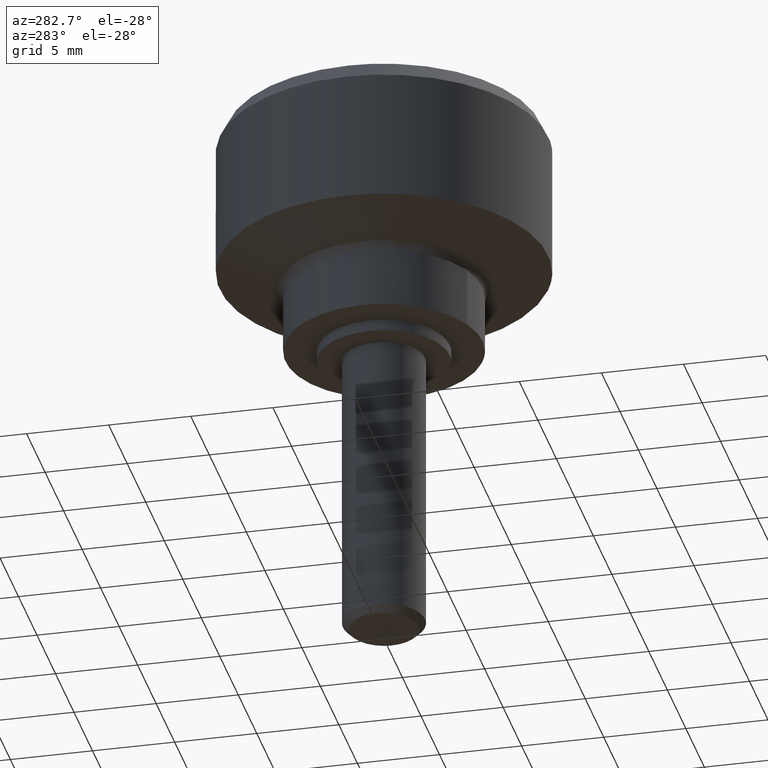
[diagram: clean part render]
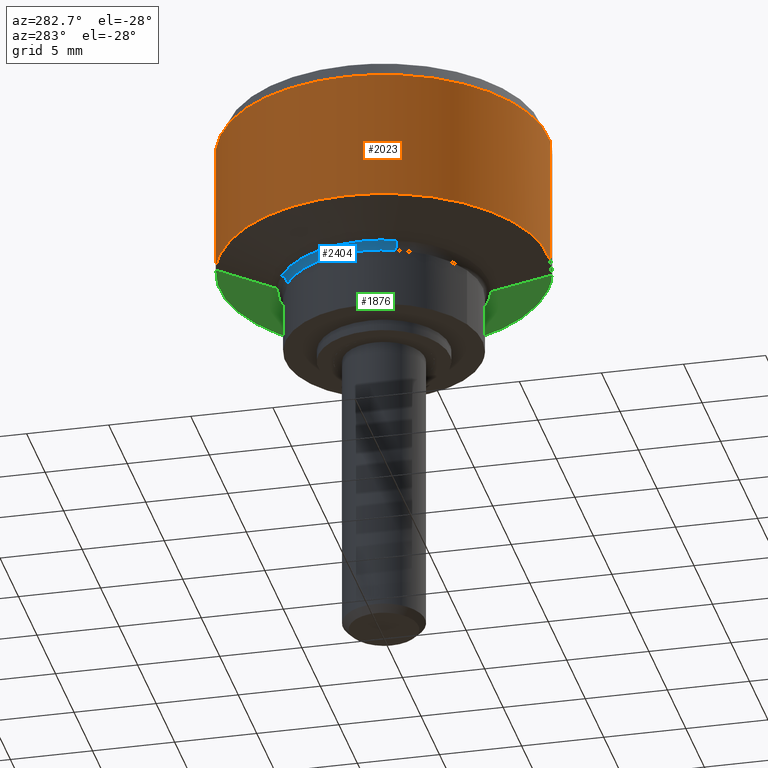
[diagram: same view with three faces highlighted in distinct colors, each labeled with its STEP entity id]
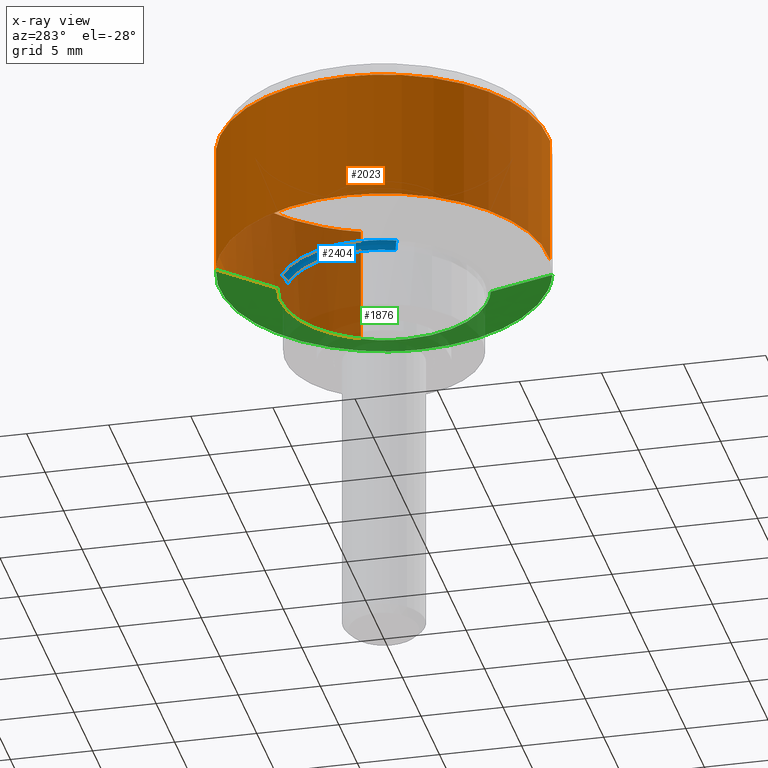
[diagram: x-ray of the same camera — body ghosted, the three highlighted faces saturated]
A machine part, auxiliary view with three faces highlighted in distinct colors.
The next image is the same camera in x-ray (body ghosted, the three faces saturated) — at least one of them is partly hidden behind the body in this view.
Their STEP definitions:

[orange] entity #2023 — the highlighted face is a freeform B-spline surface patch.
#1653=CARTESIAN_POINT('',(-10.0,0.0,6.0));
#1654=VERTEX_POINT('',#1653);
#1655=CARTESIAN_POINT('',(-2.503798872961155,9.681474495722098,5.999999304625973));
#1656=VERTEX_POINT('',#1655);
#1657=CARTESIAN_POINT('',(-10.0,0.0,6.0));
#1658=CARTESIAN_POINT('',(-9.999999732140749,7.742826764646780,5.999999652312988));
#1659=CARTESIAN_POINT('',(-2.503798872961156,9.681474495722098,5.999999304625973));
#1667=(BOUNDED_CURVE()B_SPLINE_CURVE(2,(#1657,#1658,#1659),.UNSPECIFIED.,.F.,.U.)B_SPLINE_CURVE_WITH_KNOTS((3,3),(0.0,0.207273780869320),.UNSPECIFIED.)CURVE()GEOMETRIC_REPRESENTATION_ITEM()RATIONAL_B_SPLINE_CURVE((1.0,0.757163660582203,0.916996170793144))REPRESENTATION_ITEM(''));
#1668=EDGE_CURVE('',#1654,#1656,#1667,.T.);
#1746=CARTESIAN_POINT('',(0.610475361595761,-9.981348597899157,6.0));
#1747=VERTEX_POINT('',#1746);
#1761=CARTESIAN_POINT('',(0.610475361595761,-9.981348597899157,6.0));
#1762=CARTESIAN_POINT('',(0.305522602043037,-10.000000000000002,6.000000000000001));
#1763=CARTESIAN_POINT('',(0.0,-10.0,6.0));
#1764=CARTESIAN_POINT('',(-10.000000000000002,-10.000000000000002,6.0));
#1765=CARTESIAN_POINT('',(-10.0,0.0,6.0));
#1773=(BOUNDED_CURVE()B_SPLINE_CURVE(2,(#1761,#1762,#1763,#1764,#1765),.UNSPECIFIED.,.F.,.U.)B_SPLINE_CURVE_WITH_KNOTS((3,2,3),(0.739333135694699,0.750000000000000,1.0),.UNSPECIFIED.)CURVE()GEOMETRIC_REPRESENTATION_ITEM()RATIONAL_B_SPLINE_CURVE((0.976072413415703,0.987502991115896,1.0,0.707106781186548,1.0))REPRESENTATION_ITEM(''));
#1774=EDGE_CURVE('',#1747,#1654,#1773,.T.);
#1797=CARTESIAN_POINT('',(9.361437293113475,3.516175736092539,6.0));
#1798=VERTEX_POINT('',#1797);
#1799=CARTESIAN_POINT('',(-2.503798872961156,9.681474495722098,5.999999304625973));
#1800=CARTESIAN_POINT('',(-1.272159850586715,9.999998075088126,5.999999353824332));
#1801=CARTESIAN_POINT('',(0.000000452588547,9.999998249968904,5.999999412530252));
#1802=CARTESIAN_POINT('',(6.926099330766170,9.999999202082847,5.999999732146425));
#1803=CARTESIAN_POINT('',(9.361437293113475,3.516175736092540,6.0));
#1811=(BOUNDED_CURVE()B_SPLINE_CURVE(2,(#1799,#1800,#1801,#1802,#1803),.UNSPECIFIED.,.F.,.U.)B_SPLINE_CURVE_WITH_KNOTS((3,2,3),(0.207273780869320,0.250000000000000,0.440284238520502),.UNSPECIFIED.)CURVE()GEOMETRIC_REPRESENTATION_ITEM()RATIONAL_B_SPLINE_CURVE((0.916996170793144,0.949943120604345,1.0,0.777068147561054,0.893499637388585))REPRESENTATION_ITEM(''));
#1812=EDGE_CURVE('',#1656,#1798,#1811,.T.);
#1899=CARTESIAN_POINT('',(9.361436534043978,3.516177757034214,13.999999999999989));
#1900=VERTEX_POINT('',#1899);
#1916=CARTESIAN_POINT('',(0.610485395359689,-9.981347984218999,13.999999999996110));
#1917=VERTEX_POINT('',#1916);
#1931=CARTESIAN_POINT('',(0.610485395359689,-9.981347984218999,13.999999999996110));
#1932=CARTESIAN_POINT('',(0.610475361595761,-9.981348597899157,6.0));
#1933=QUASI_UNIFORM_CURVE('',1,(#1931,#1932),.UNSPECIFIED.,.F.,.U.);
#1934=EDGE_CURVE('',#1917,#1747,#1933,.T.);
#1939=CARTESIAN_POINT('',(9.361436534043978,3.516177757034214,13.999999999999989));
#1940=CARTESIAN_POINT('',(9.361437293113475,3.516175736092539,6.0));
#1941=QUASI_UNIFORM_CURVE('',1,(#1939,#1940),.UNSPECIFIED.,.F.,.U.);
#1942=EDGE_CURVE('',#1900,#1798,#1941,.T.);
#1947=CARTESIAN_POINT('',(0.610485395348570,-9.981347984218667,14.199999999999999));
#1948=CARTESIAN_POINT('',(-9.370862588870097,-10.591833379567237,14.200000000000006));
#1949=CARTESIAN_POINT('',(-9.981347984218667,-0.610485395348570,14.199999999999999));
#1950=CARTESIAN_POINT('',(-10.591833379567237,9.370862588870097,14.200000000000006));
#1951=CARTESIAN_POINT('',(-0.610485395348570,9.981347984218667,14.199999999999999));
#1952=CARTESIAN_POINT('',(6.763695818030652,10.432372228693419,14.199999999999999));
#1953=CARTESIAN_POINT('',(9.361435787766570,3.516179743915722,14.200000000000010));
#1954=CARTESIAN_POINT('',(0.610485395348570,-9.981347984218667,5.795000000000000));
#1955=CARTESIAN_POINT('',(-9.370862588870097,-10.591833379567237,5.795000000000000));
#1956=CARTESIAN_POINT('',(-9.981347984218667,-0.610485395348570,5.795000000000000));
#1957=CARTESIAN_POINT('',(-10.591833379567237,9.370862588870097,5.795000000000000));
#1958=CARTESIAN_POINT('',(-0.610485395348570,9.981347984218667,5.795000000000000));
#1959=CARTESIAN_POINT('',(6.763695818030652,10.432372228693419,5.795000000000000));
#1960=CARTESIAN_POINT('',(9.361435787766570,3.516179743915722,5.795000000000001));
#1968=(BOUNDED_SURFACE()B_SPLINE_SURFACE(2,1,((#1947,#1954),(#1948,#1955),(#1949,#1956),(#1950,#1957),(#1951,#1958),(#1952,#1959),(#1953,#1960)),.UNSPECIFIED.,.F.,.F.,.U.)B_SPLINE_SURFACE_WITH_KNOTS((3,2,2,3),(2,2),(0.0,16.568542494923800,33.137084989847587,46.391918985786631),(0.0,8.405000000000003),.UNSPECIFIED.)GEOMETRIC_REPRESENTATION_ITEM()RATIONAL_B_SPLINE_SURFACE(((1.0,1.0),(0.707106781186548,0.707106781186548),(1.0,1.0),(0.707106781186548,0.707106781186548),(1.0,1.0),(0.765685424949238,0.765685424949238),(0.906274169979695,0.906274169979695)))REPRESENTATION_ITEM('')SURFACE());
#1969=CARTESIAN_POINT('',(-1.180342346573866,9.930095263636492,13.999999999998860));
#1970=VERTEX_POINT('',#1969);
#1971=CARTESIAN_POINT('',(-1.180342346573866,9.930095263636492,13.999999999998863));
#1972=CARTESIAN_POINT('',(-0.592241196525381,10.000000000000002,14.000000000000007));
#1973=CARTESIAN_POINT('',(0.0,10.0,14.0));
#1974=CARTESIAN_POINT('',(6.926097527218571,10.0,13.999999999999998));
#1975=CARTESIAN_POINT('',(9.361436534043978,3.516177757034214,13.999999999999986));
#1983=(BOUNDED_CURVE()B_SPLINE_CURVE(2,(#1971,#1972,#1973,#1974,#1975),.UNSPECIFIED.,.F.,.U.)B_SPLINE_CURVE_WITH_KNOTS((3,2,3),(0.229562473515433,0.250000000000000,0.440284204422369),.UNSPECIFIED.)CURVE()GEOMETRIC_REPRESENTATION_ITEM()RATIONAL_B_SPLINE_CURVE((0.956026754187471,0.976055948333400,1.0,0.777068187509501,0.893499595660533))REPRESENTATION_ITEM(''));
#1984=EDGE_CURVE('',#1970,#1900,#1983,.T.);
#1985=ORIENTED_EDGE('',*,*,#1984,.T.);
#1986=ORIENTED_EDGE('',*,*,#1942,.T.);
#1987=ORIENTED_EDGE('',*,*,#1812,.F.);
#1988=ORIENTED_EDGE('',*,*,#1668,.F.);
#1989=ORIENTED_EDGE('',*,*,#1774,.F.);
#1990=ORIENTED_EDGE('',*,*,#1934,.F.);
#1991=CARTESIAN_POINT('',(-10.0,0.0,14.0));
#1992=VERTEX_POINT('',#1991);
#1993=CARTESIAN_POINT('',(0.610485395359689,-9.981347984218999,13.999999999996104));
#1994=CARTESIAN_POINT('',(0.305527633008066,-10.000000000000002,14.000000000000007));
#1995=CARTESIAN_POINT('',(0.0,-10.0,14.0));
#1996=CARTESIAN_POINT('',(-10.000000000000002,-10.000000000000002,13.999999999999998));
#1997=CARTESIAN_POINT('',(-10.0,0.0,14.0));
#2005=(BOUNDED_CURVE()B_SPLINE_CURVE(2,(#1993,#1994,#1995,#1996,#1997),.UNSPECIFIED.,.F.,.U.)B_SPLINE_CURVE_WITH_KNOTS((3,2,3),(0.739332962241204,0.750000000000000,1.0),.UNSPECIFIED.)CURVE()GEOMETRIC_REPRESENTATION_ITEM()RATIONAL_B_SPLINE_CURVE((0.976072041671563,0.987502787902486,1.0,0.707106781186548,1.0))REPRESENTATION_ITEM(''));
#2006=EDGE_CURVE('',#1917,#1992,#2005,.T.);
#2007=ORIENTED_EDGE('',*,*,#2006,.T.);
#2008=CARTESIAN_POINT('',(-10.0,0.0,14.0));
#2009=CARTESIAN_POINT('',(-9.999999999999998,8.881745259502484,14.0));
#2010=CARTESIAN_POINT('',(-1.180342346573867,9.930095263636492,13.999999999998861));
#2018=(BOUNDED_CURVE()B_SPLINE_CURVE(2,(#2008,#2009,#2010),.UNSPECIFIED.,.F.,.U.)B_SPLINE_CURVE_WITH_KNOTS((3,3),(0.0,0.229562473515433),.UNSPECIFIED.)CURVE()GEOMETRIC_REPRESENTATION_ITEM()RATIONAL_B_SPLINE_CURVE((1.0,0.731050832853148,0.956026754187471))REPRESENTATION_ITEM(''));
#2019=EDGE_CURVE('',#1992,#1970,#2018,.T.);
#2020=ORIENTED_EDGE('',*,*,#2019,.T.);
#2021=EDGE_LOOP('',(#1985,#1986,#1987,#1988,#1989,#1990,#2007,#2020));
#2022=FACE_OUTER_BOUND('',#2021,.T.);
#2023=ADVANCED_FACE('',(#2022),#1968,.T.);

[blue] entity #2404 — the highlighted face is a freeform B-spline surface patch.
#1447=CARTESIAN_POINT('',(-5.657943215357072,-1.996917267138241,4.336761000207225));
#1448=VERTEX_POINT('',#1447);
#1462=CARTESIAN_POINT('',(-6.0,0.0,4.336761000000000));
#1463=VERTEX_POINT('',#1462);
#1464=CARTESIAN_POINT('',(-5.657943215357073,-1.996917267138242,4.336761000207225));
#1465=CARTESIAN_POINT('',(-6.0,-1.027754500214772,4.336761000000000));
#1466=CARTESIAN_POINT('',(-6.0,0.0,4.336761000000000));
#1474=(BOUNDED_CURVE()B_SPLINE_CURVE(2,(#1464,#1465,#1466),.UNSPECIFIED.,.F.,.U.)B_SPLINE_CURVE_WITH_KNOTS((3,3),(0.943451214484687,1.0),.UNSPECIFIED.)CURVE()GEOMETRIC_REPRESENTATION_ITEM()RATIONAL_B_SPLINE_CURVE((0.897469272749603,0.933748976761714,1.0))REPRESENTATION_ITEM(''));
#1475=EDGE_CURVE('',#1448,#1463,#1474,.T.);
#1477=CARTESIAN_POINT('',(-2.953789897803318,5.222559261476604,4.336761000207664));
#1478=VERTEX_POINT('',#1477);
#1479=CARTESIAN_POINT('',(-6.0,0.0,4.336761000000000));
#1480=CARTESIAN_POINT('',(-6.000000000000001,3.499675101438962,4.336761000000000));
#1481=CARTESIAN_POINT('',(-2.953789897803318,5.222559261476604,4.336761000207664));
#1489=(BOUNDED_CURVE()B_SPLINE_CURVE(2,(#1479,#1480,#1481),.UNSPECIFIED.,.F.,.U.)B_SPLINE_CURVE_WITH_KNOTS((3,3),(0.0,0.166092119980821),.UNSPECIFIED.)CURVE()GEOMETRIC_REPRESENTATION_ITEM()RATIONAL_B_SPLINE_CURVE((1.0,0.805410977437068,0.869379581133922))REPRESENTATION_ITEM(''));
#1490=EDGE_CURVE('',#1463,#1478,#1489,.T.);
#1677=CARTESIAN_POINT('',(-3.123857865619943,5.523254324740719,4.812278568170535));
#1678=VERTEX_POINT('',#1677);
#1692=CARTESIAN_POINT('',(-6.345457000000000,0.0,4.812279000000100));
#1693=VERTEX_POINT('',#1692);
#1694=CARTESIAN_POINT('',(-6.345457000000000,0.0,4.812279000000100));
#1695=CARTESIAN_POINT('',(-6.345457000000001,3.701172978311164,4.812279000000100));
#1696=CARTESIAN_POINT('',(-3.123857865619943,5.523254324740719,4.812278568170536));
#1704=(BOUNDED_CURVE()B_SPLINE_CURVE(2,(#1694,#1695,#1696),.UNSPECIFIED.,.F.,.U.)B_SPLINE_CURVE_WITH_KNOTS((3,3),(0.0,0.166092119979107),.UNSPECIFIED.)CURVE()GEOMETRIC_REPRESENTATION_ITEM()RATIONAL_B_SPLINE_CURVE((1.0,0.805410977439077,0.869379581132602))REPRESENTATION_ITEM(''));
#1705=EDGE_CURVE('',#1693,#1678,#1704,.T.);
#1707=CARTESIAN_POINT('',(-5.983706029070980,-2.111892155176531,4.812278568607777));
#1708=VERTEX_POINT('',#1707);
#1709=CARTESIAN_POINT('',(-5.983706029070979,-2.111892155176531,4.812278568607777));
#1710=CARTESIAN_POINT('',(-6.345457000000000,-1.086928664614271,4.812279000000100));
#1711=CARTESIAN_POINT('',(-6.345457000000000,0.0,4.812279000000100));
#1719=(BOUNDED_CURVE()B_SPLINE_CURVE(2,(#1709,#1710,#1711),.UNSPECIFIED.,.F.,.U.)B_SPLINE_CURVE_WITH_KNOTS((3,3),(0.943451214484555,1.0),.UNSPECIFIED.)CURVE()GEOMETRIC_REPRESENTATION_ITEM()RATIONAL_B_SPLINE_CURVE((0.897469272749433,0.933748976761559,1.0))REPRESENTATION_ITEM(''));
#1720=EDGE_CURVE('',#1708,#1693,#1719,.T.);
#2343=CARTESIAN_POINT('',(-2.953789897803318,5.222559261476604,4.336761000207664));
#2344=CARTESIAN_POINT('',(-2.953789897951618,5.222559261739375,4.700004773246357));
#2345=CARTESIAN_POINT('',(-3.123857865619943,5.523254324740718,4.812278568170535));
#2353=(BOUNDED_CURVE()B_SPLINE_CURVE(2,(#2343,#2344,#2345),.UNSPECIFIED.,.F.,.U.)B_SPLINE_CURVE_WITH_KNOTS((3,3),(-1.673208011456584,-0.312327424572744),.UNSPECIFIED.)CURVE()GEOMETRIC_REPRESENTATION_ITEM()RATIONAL_B_SPLINE_CURVE((0.842900705055712,0.683324375444183,0.846329366017243))REPRESENTATION_ITEM(''));
#2354=EDGE_CURVE('',#1478,#1678,#2353,.T.);
#2360=CARTESIAN_POINT('',(-5.657943215357072,-1.996917267138242,4.336761000207225));
#2361=CARTESIAN_POINT('',(-5.657943215641112,-1.996917267238128,4.700004775407402));
#2362=CARTESIAN_POINT('',(-5.983706029070980,-2.111892155176531,4.812278568607777));
#2370=(BOUNDED_CURVE()B_SPLINE_CURVE(2,(#2360,#2361,#2362),.UNSPECIFIED.,.F.,.U.)B_SPLINE_CURVE_WITH_KNOTS((3,3),(-1.673208011458616,-0.312327418008598),.UNSPECIFIED.)CURVE()GEOMETRIC_REPRESENTATION_ITEM()RATIONAL_B_SPLINE_CURVE((0.898479810620753,0.728381351524579,0.902134551974445))REPRESENTATION_ITEM(''));
#2371=EDGE_CURVE('',#1448,#1708,#2370,.T.);
#2379=CARTESIAN_POINT('',(-5.658743403133090,-1.997199685805947,4.307643240963758));
#2380=CARTESIAN_POINT('',(-7.333056350964485,2.746696187829694,4.307643240963756));
#2381=CARTESIAN_POINT('',(-2.954207644407955,5.223297874064548,4.307643240963756));
#2382=CARTESIAN_POINT('',(-5.636245892528127,-1.989259403324367,4.716622711480957));
#2383=CARTESIAN_POINT('',(-7.303902261218821,2.735776126216703,4.716622711480955));
#2384=CARTESIAN_POINT('',(-2.942462577866762,5.202531567670521,4.716622711480956));
#2385=CARTESIAN_POINT('',(-6.009955039453889,-2.121156493835609,4.820439975905156));
#2386=CARTESIAN_POINT('',(-7.788184731379984,2.917170724998078,4.820439975905154));
#2387=CARTESIAN_POINT('',(-3.137561443459786,5.547483450729052,4.820439975905155));
#2395=(BOUNDED_SURFACE()B_SPLINE_SURFACE(2,2,((#2379,#2382,#2385),(#2380,#2383,#2386),(#2381,#2384,#2387)),.UNSPECIFIED.,.F.,.F.,.U.)B_SPLINE_SURFACE_WITH_KNOTS((3,3),(3,3),(0.0,9.269561731957605),(0.0,0.714714005346148),.UNSPECIFIED.)GEOMETRIC_REPRESENTATION_ITEM()RATIONAL_B_SPLINE_SURFACE(((0.916330559815559,0.710347984196049,0.920350539926130),(0.680149993513429,0.527258609535480,0.683133839699547),(0.859647223903048,0.666406534277513,0.863418531871750)))REPRESENTATION_ITEM('')SURFACE());
#2396=ORIENTED_EDGE('',*,*,#1490,.F.);
#2397=ORIENTED_EDGE('',*,*,#1475,.F.);
#2398=ORIENTED_EDGE('',*,*,#2371,.T.);
#2399=ORIENTED_EDGE('',*,*,#1720,.T.);
#2400=ORIENTED_EDGE('',*,*,#1705,.T.);
#2401=ORIENTED_EDGE('',*,*,#2354,.F.);
#2402=EDGE_LOOP('',(#2396,#2397,#2398,#2399,#2400,#2401));
#2403=FACE_OUTER_BOUND('',#2402,.T.);
#2404=ADVANCED_FACE('',(#2403),#2395,.F.);

[green] entity #1876 — the highlighted face is a freeform B-spline surface patch.
#1655=CARTESIAN_POINT('',(-2.503798872961155,9.681474495722098,5.999999304625973));
#1656=VERTEX_POINT('',#1655);
#1670=CARTESIAN_POINT('',(-1.588775553341734,6.143339236952796,4.812278946696894));
#1671=VERTEX_POINT('',#1670);
#1672=CARTESIAN_POINT('',(-1.588775553341734,6.143339236952796,4.812278946696894));
#1673=CARTESIAN_POINT('',(-2.503798872961155,9.681474495722098,5.999999304625973));
#1674=QUASI_UNIFORM_CURVE('',1,(#1672,#1673),.UNSPECIFIED.,.F.,.U.);
#1675=EDGE_CURVE('',#1671,#1656,#1674,.T.);
#1722=CARTESIAN_POINT('',(1.588775549449928,-6.143339221662375,4.812279000002565));
#1723=VERTEX_POINT('',#1722);
#1739=CARTESIAN_POINT('',(2.503800040589022,-9.681476403775154,6.000000000001768));
#1740=VERTEX_POINT('',#1739);
#1741=CARTESIAN_POINT('',(1.588775549449928,-6.143339221662375,4.812279000002565));
#1742=CARTESIAN_POINT('',(2.503800040589022,-9.681476403775154,6.000000000001768));
#1743=QUASI_UNIFORM_CURVE('',1,(#1741,#1742),.UNSPECIFIED.,.F.,.U.);
#1744=EDGE_CURVE('',#1723,#1740,#1743,.T.);
#1779=CARTESIAN_POINT('',(1.565899596108243,-6.054884473568380,4.782585532374798));
#1780=CARTESIAN_POINT('',(7.620784069676624,-4.488984877460135,4.782585532374798));
#1781=CARTESIAN_POINT('',(6.054884473568380,1.565899596108243,4.782585532374798));
#1782=CARTESIAN_POINT('',(4.488984877460135,7.620784069676624,4.782585532374798));
#1783=CARTESIAN_POINT('',(-1.565899596108243,6.054884473568380,4.782585532374798));
#1784=CARTESIAN_POINT('',(2.527247551655322,-9.772141202036391,6.030435361690631));
#1785=CARTESIAN_POINT('',(12.299388753691712,-7.244893650381069,6.030435361690631));
#1786=CARTESIAN_POINT('',(9.772141202036391,2.527247551655322,6.030435361690631));
#1787=CARTESIAN_POINT('',(7.244893650381069,12.299388753691712,6.030435361690631));
#1788=CARTESIAN_POINT('',(-2.527247551655322,9.772141202036391,6.030435361690631));
#1796=(BOUNDED_SURFACE()B_SPLINE_SURFACE(2,1,((#1779,#1784),(#1780,#1785),(#1781,#1786),(#1782,#1787),(#1783,#1788)),.UNSPECIFIED.,.F.,.F.,.U.)B_SPLINE_SURFACE_WITH_KNOTS((3,2,3),(2,2),(0.0,16.723703082011550,33.447406164023107),(0.0,4.037241220623162),.UNSPECIFIED.)GEOMETRIC_REPRESENTATION_ITEM()RATIONAL_B_SPLINE_SURFACE(((1.0,1.0),(0.707106781186548,0.707106781186548),(1.0,1.0),(0.707106781186548,0.707106781186548),(1.0,1.0)))REPRESENTATION_ITEM('')SURFACE());
#1797=CARTESIAN_POINT('',(9.361437293113475,3.516175736092539,6.0));
#1798=VERTEX_POINT('',#1797);
#1799=CARTESIAN_POINT('',(-2.503798872961156,9.681474495722098,5.999999304625973));
#1800=CARTESIAN_POINT('',(-1.272159850586715,9.999998075088126,5.999999353824332));
#1801=CARTESIAN_POINT('',(0.000000452588547,9.999998249968904,5.999999412530252));
#1802=CARTESIAN_POINT('',(6.926099330766170,9.999999202082847,5.999999732146425));
#1803=CARTESIAN_POINT('',(9.361437293113475,3.516175736092540,6.0));
#1811=(BOUNDED_CURVE()B_SPLINE_CURVE(2,(#1799,#1800,#1801,#1802,#1803),.UNSPECIFIED.,.F.,.U.)B_SPLINE_CURVE_WITH_KNOTS((3,2,3),(0.207273780869320,0.250000000000000,0.440284238520502),.UNSPECIFIED.)CURVE()GEOMETRIC_REPRESENTATION_ITEM()RATIONAL_B_SPLINE_CURVE((0.916996170793144,0.949943120604345,1.0,0.777068147561054,0.893499637388585))REPRESENTATION_ITEM(''));
#1812=EDGE_CURVE('',#1656,#1798,#1811,.T.);
#1813=ORIENTED_EDGE('',*,*,#1812,.T.);
#1814=CARTESIAN_POINT('',(10.0,0.0,6.0));
#1815=VERTEX_POINT('',#1814);
#1816=CARTESIAN_POINT('',(9.361437293113475,3.516175736092540,6.0));
#1817=CARTESIAN_POINT('',(10.0,1.816071649465481,6.000000000000001));
#1818=CARTESIAN_POINT('',(10.0,0.0,6.0));
#1826=(BOUNDED_CURVE()B_SPLINE_CURVE(2,(#1816,#1817,#1818),.UNSPECIFIED.,.F.,.U.)B_SPLINE_CURVE_WITH_KNOTS((3,3),(0.440284238520502,0.500000000000000),.UNSPECIFIED.)CURVE()GEOMETRIC_REPRESENTATION_ITEM()RATIONAL_B_SPLINE_CURVE((0.893499637388585,0.930038633625493,1.0))REPRESENTATION_ITEM(''));
#1827=EDGE_CURVE('',#1798,#1815,#1826,.T.);
#1828=ORIENTED_EDGE('',*,*,#1827,.T.);
#1829=CARTESIAN_POINT('',(10.0,0.0,6.0));
#1830=CARTESIAN_POINT('',(10.0,-7.742827278346504,6.0));
#1831=CARTESIAN_POINT('',(2.503800040589022,-9.681476403775154,6.000000000001768));
#1839=(BOUNDED_CURVE()B_SPLINE_CURVE(2,(#1829,#1830,#1831),.UNSPECIFIED.,.F.,.U.)B_SPLINE_CURVE_WITH_KNOTS((3,3),(0.500000000000000,0.707273770288130),.UNSPECIFIED.)CURVE()GEOMETRIC_REPRESENTATION_ITEM()RATIONAL_B_SPLINE_CURVE((1.0,0.757163672978838,0.916996154474456))REPRESENTATION_ITEM(''));
#1840=EDGE_CURVE('',#1815,#1740,#1839,.T.);
#1841=ORIENTED_EDGE('',*,*,#1840,.T.);
#1842=ORIENTED_EDGE('',*,*,#1744,.F.);
#1843=CARTESIAN_POINT('',(6.345457000000000,0.0,4.812279000000100));
#1844=VERTEX_POINT('',#1843);
#1845=CARTESIAN_POINT('',(6.345457000000000,0.0,4.812279000000100));
#1846=CARTESIAN_POINT('',(6.345457000000000,-4.913177755262423,4.812279000000100));
#1847=CARTESIAN_POINT('',(1.588775549449929,-6.143339221662375,4.812279000002567));
#1855=(BOUNDED_CURVE()B_SPLINE_CURVE(2,(#1845,#1846,#1847),.UNSPECIFIED.,.F.,.U.)B_SPLINE_CURVE_WITH_KNOTS((3,3),(0.500000000000000,0.707273770286371),.UNSPECIFIED.)CURVE()GEOMETRIC_REPRESENTATION_ITEM()RATIONAL_B_SPLINE_CURVE((1.0,0.757163672980898,0.916996154471744))REPRESENTATION_ITEM(''));
#1856=EDGE_CURVE('',#1844,#1723,#1855,.T.);
#1857=ORIENTED_EDGE('',*,*,#1856,.F.);
#1858=CARTESIAN_POINT('',(-1.588775553341735,6.143339236952797,4.812278946696894));
#1859=CARTESIAN_POINT('',(-0.807244084731628,6.345457000000001,4.812279000000100));
#1860=CARTESIAN_POINT('',(0.0,6.345457000000000,4.812279000000100));
#1861=CARTESIAN_POINT('',(6.345457000000001,6.345457000000001,4.812279000000099));
#1862=CARTESIAN_POINT('',(6.345457000000000,0.0,4.812279000000100));
#1870=(BOUNDED_CURVE()B_SPLINE_CURVE(2,(#1858,#1859,#1860,#1861,#1862),.UNSPECIFIED.,.F.,.U.)B_SPLINE_CURVE_WITH_KNOTS((3,2,3),(0.207273770514733,0.250000000000000,0.500000000000000),.UNSPECIFIED.)CURVE()GEOMETRIC_REPRESENTATION_ITEM()RATIONAL_B_SPLINE_CURVE((0.916996154823930,0.949943108473191,1.0,0.707106781186548,1.0))REPRESENTATION_ITEM(''));
#1871=EDGE_CURVE('',#1671,#1844,#1870,.T.);
#1872=ORIENTED_EDGE('',*,*,#1871,.F.);
#1873=ORIENTED_EDGE('',*,*,#1675,.T.);
#1874=EDGE_LOOP('',(#1813,#1828,#1841,#1842,#1857,#1872,#1873));
#1875=FACE_OUTER_BOUND('',#1874,.T.);
#1876=ADVANCED_FACE('',(#1875),#1796,.T.);